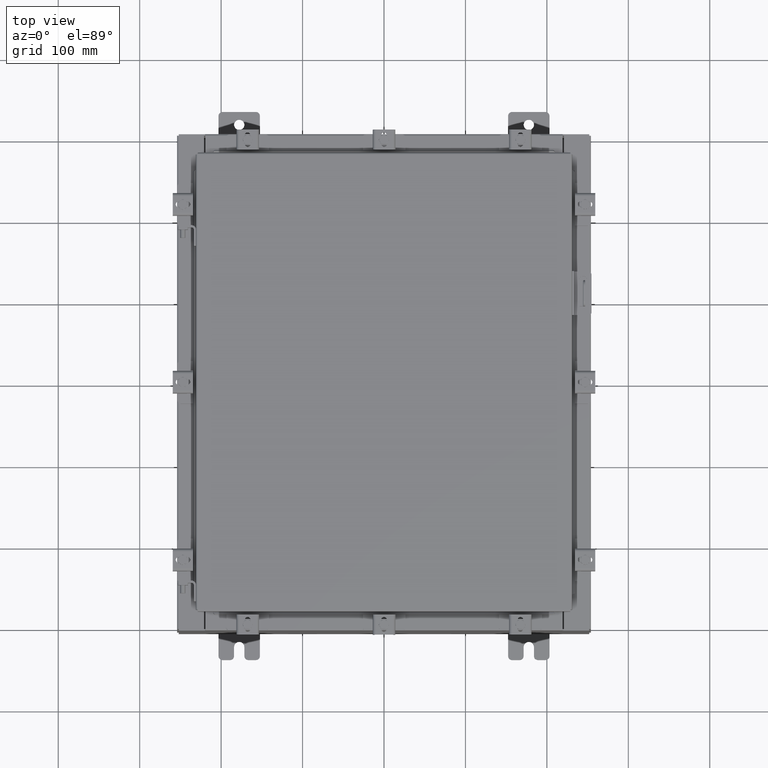
[diagram: clean part render]
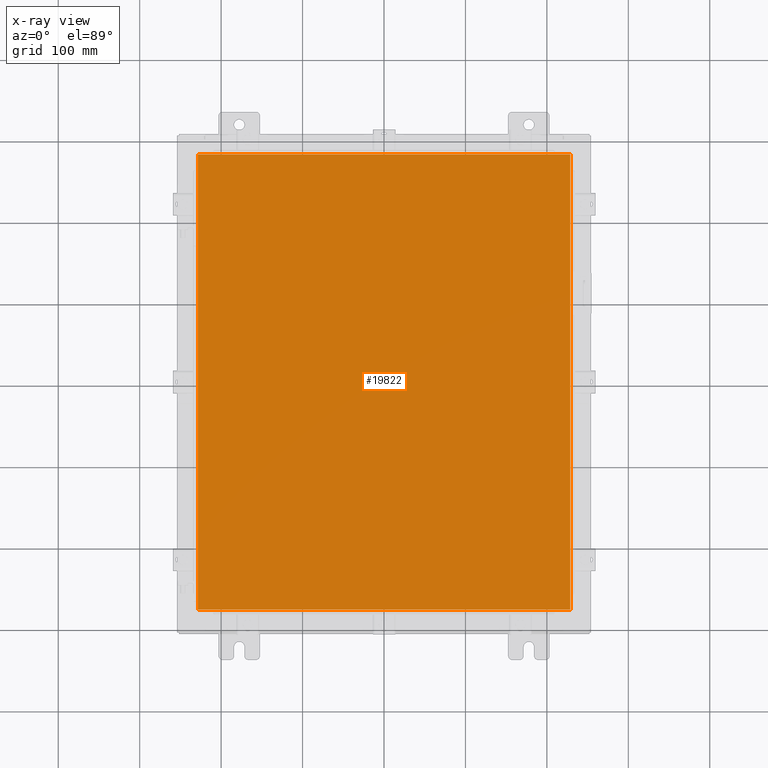
[diagram: x-ray — body ghosted, one internal face saturated and labeled with its STEP entity id]
A machine part, top view, then the same camera in x-ray: the body is ghosted and one INTERNAL B-rep face — a face not visible from any outside direction — is saturated and labeled: STEP entity #19822.
In plain terms, the highlighted planar face has unit normal (0, 0, -1).
Its self-contained STEP definition (entity closure, byte-faithful):
#75 = ORIENTED_EDGE ( 'NONE', *, *, #13001, .F. ) ;
#641 = CARTESIAN_POINT ( 'NONE',  ( -9.006300000000001300, -11.00629999999999600, -0.07470000000000015500 ) ) ;
#987 = VECTOR ( 'NONE', #7585, 39.37007874015748100 ) ;
#3608 = VERTEX_POINT ( 'NONE', #18634 ) ;
#6177 = PLANE ( 'NONE',  #19736 ) ;
#6209 = CARTESIAN_POINT ( 'NONE',  ( 9.006299999999997800, -11.00629999999999600, -0.07470000000000015500 ) ) ;
#6239 = DIRECTION ( 'NONE',  ( 0.0000000000000000000, 0.0000000000000000000, -1.000000000000000000 ) ) ;
#6346 = LINE ( 'NONE', #19165, #10144 ) ;
#6857 = VERTEX_POINT ( 'NONE', #13447 ) ;
#7101 = DIRECTION ( 'NONE',  ( 1.000000000000000000, -0.0000000000000000000, -0.0000000000000000000 ) ) ;
#7129 = VERTEX_POINT ( 'NONE', #6209 ) ;
#7585 = DIRECTION ( 'NONE',  ( -1.000000000000000000, -0.0000000000000000000, -0.0000000000000000000 ) ) ;
#9445 = CARTESIAN_POINT ( 'NONE',  ( 0.0000000000000000000, 0.0000000000000000000, -0.07470000000000015500 ) ) ;
#9568 = LINE ( 'NONE', #18795, #987 ) ;
#10144 = VECTOR ( 'NONE', #19233, 39.37007874015748100 ) ;
#10422 = VECTOR ( 'NONE', #7101, 39.37007874015748100 ) ;
#11730 = DIRECTION ( 'NONE',  ( 0.0000000000000000000, -1.000000000000000000, 0.0000000000000000000 ) ) ;
#12730 = EDGE_CURVE ( 'NONE', #3608, #7129, #18907, .T. ) ;
#13001 = EDGE_CURVE ( 'NONE', #7129, #6857, #6346, .T. ) ;
#13254 = ORIENTED_EDGE ( 'NONE', *, *, #15647, .F. ) ;
#13351 = ORIENTED_EDGE ( 'NONE', *, *, #12730, .F. ) ;
#13447 = CARTESIAN_POINT ( 'NONE',  ( 9.006299999999996000, 11.00630000000000100, -0.07470000000000015500 ) ) ;
#13752 = VECTOR ( 'NONE', #11730, 39.37007874015748100 ) ;
#14773 = EDGE_CURVE ( 'NONE', #6857, #15951, #9568, .T. ) ;
#14878 = CARTESIAN_POINT ( 'NONE',  ( -9.006300000000001300, 11.00630000000000100, -0.07470000000000015500 ) ) ;
#15044 = ORIENTED_EDGE ( 'NONE', *, *, #14773, .F. ) ;
#15212 = EDGE_LOOP ( 'NONE', ( #75, #13351, #13254, #15044 ) ) ;
#15593 = CARTESIAN_POINT ( 'NONE',  ( -9.006300000000001300, 11.00630000000000100, -0.07470000000000015500 ) ) ;
#15647 = EDGE_CURVE ( 'NONE', #15951, #3608, #17993, .T. ) ;
#15951 = VERTEX_POINT ( 'NONE', #15593 ) ;
#17469 = DIRECTION ( 'NONE',  ( -1.000000000000000000, 0.0000000000000000000, -0.0000000000000000000 ) ) ;
#17993 = LINE ( 'NONE', #14878, #13752 ) ;
#18634 = CARTESIAN_POINT ( 'NONE',  ( -9.006300000000001300, -11.00629999999999600, -0.07470000000000015500 ) ) ;
#18795 = CARTESIAN_POINT ( 'NONE',  ( 9.006299999999997800, 11.00630000000000100, -0.07470000000000234800 ) ) ;
#18907 = LINE ( 'NONE', #641, #10422 ) ;
#18926 = FACE_OUTER_BOUND ( 'NONE', #15212, .T. ) ;
#19165 = CARTESIAN_POINT ( 'NONE',  ( 9.006299999999997800, -11.00629999999999600, -0.07470000000000015500 ) ) ;
#19233 = DIRECTION ( 'NONE',  ( 0.0000000000000000000, 1.000000000000000000, 0.0000000000000000000 ) ) ;
#19736 = AXIS2_PLACEMENT_3D ( 'NONE', #9445, #6239, #17469 ) ;
#19822 = ADVANCED_FACE ( 'NONE', ( #18926 ), #6177, .T. ) ;